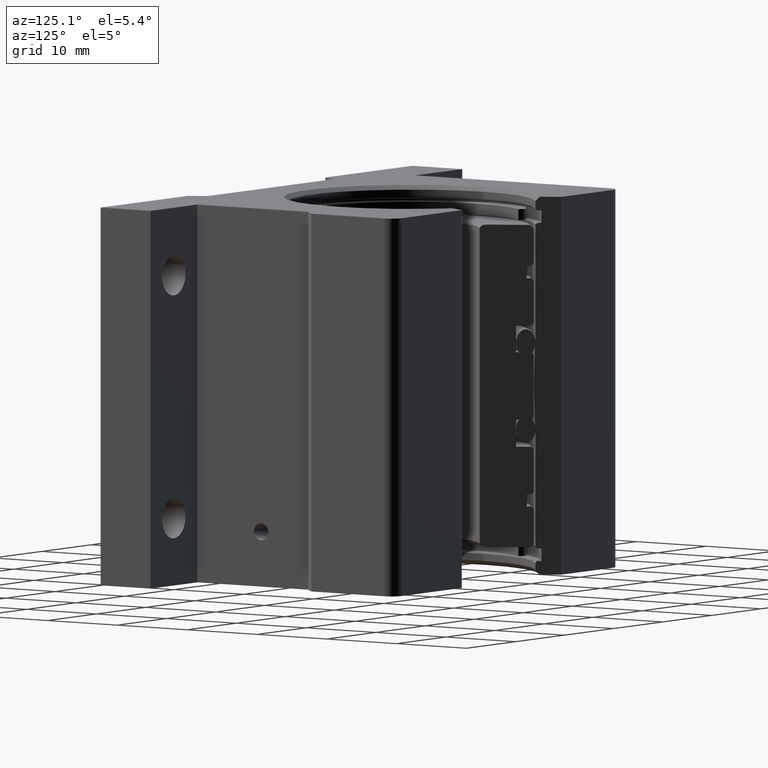
[diagram: clean part render]
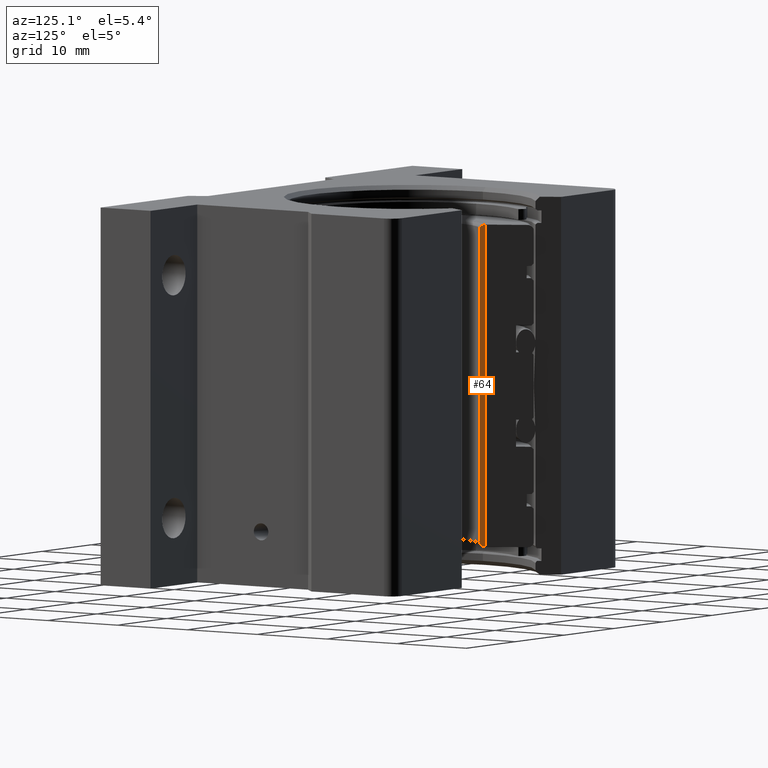
[diagram: same view with one face highlighted and labeled with its STEP entity id]
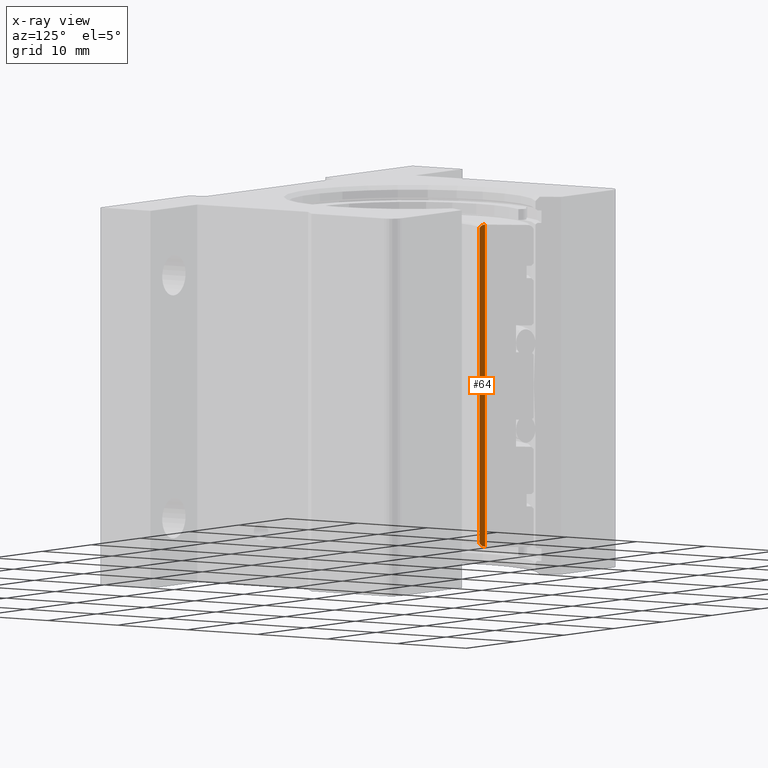
[diagram: x-ray of the same camera — body ghosted, the highlighted face saturated]
A machine part, auxiliary view. The second image highlights one B-rep face of the part: STEP entity #64.
The next image is the same camera in x-ray: the body ghosted, the highlighted face saturated — about 0% of this face is hidden behind the body in this view.
In plain terms, the highlighted planar face has unit normal (-0.866, -0.5, 0).
Its self-contained STEP definition (entity closure, byte-faithful):
#64 = ADVANCED_FACE ( 'NONE', ( #5578 ), #4351, .F. ) ;
#144 = CARTESIAN_POINT ( 'NONE',  ( -0.2003461468640649890, 0.2728436758232128945, 0.7462412383038781183 ) ) ;
#646 = CARTESIAN_POINT ( 'NONE',  ( -0.1906664938282702781, 0.2560780249655780216, 0.7392375786190304998 ) ) ;
#975 = CARTESIAN_POINT ( 'NONE',  ( -0.1990259073393738920, 0.2705569538882873215, -0.7461777922676955388 ) ) ;
#1679 = CARTESIAN_POINT ( 'NONE',  ( -0.2003461468640649890, 0.2728436758232128945, -0.7462412383038781183 ) ) ;
#1759 = CARTESIAN_POINT ( 'NONE',  ( -0.2003461468640650722, 0.2728436758232128945, -0.7462412383038781183 ) ) ;
#2410 = VECTOR ( 'NONE', #9786, 39.37007874015748143 ) ;
#2693 = EDGE_CURVE ( 'NONE', #8098, #7649, #9598, .T. ) ;
#2814 = CARTESIAN_POINT ( 'NONE',  ( -0.1874999999999999722, 0.2505934967731605623, -0.7462412383038781183 ) ) ;
#3153 = AXIS2_PLACEMENT_3D ( 'NONE', #7932, #5221, #10568 ) ;
#3440 = CARTESIAN_POINT ( 'NONE',  ( -0.1874999999999999167, 0.2505934967731605623, -0.7307736875482778727 ) ) ;
#3514 = ORIENTED_EDGE ( 'NONE', *, *, #2693, .T. ) ;
#4005 = EDGE_LOOP ( 'NONE', ( #3514, #8287, #7857, #4146 ) ) ;
#4020 = CARTESIAN_POINT ( 'NONE',  ( -0.1952389169351576026, 0.2639976941004088529, 0.7443287212032394518 ) ) ;
#4128 = CARTESIAN_POINT ( 'NONE',  ( -0.1977409822423569496, 0.2683313983363335709, 0.7457771688753566108 ) ) ;
#4146 = ORIENTED_EDGE ( 'NONE', *, *, #6683, .F. ) ;
#4267 = VERTEX_POINT ( 'NONE', #11198 ) ;
#4351 = PLANE ( 'NONE',  #3153 ) ;
#5094 = CARTESIAN_POINT ( 'NONE',  ( -0.1940155853690803123, 0.2618788216734602159, -0.7432618688159996490 ) ) ;
#5221 = DIRECTION ( 'NONE',  ( -0.8660254037844401509, -0.4999999999999974465, 1.110223024625151117E-16 ) ) ;
#5578 = FACE_OUTER_BOUND ( 'NONE', #4005, .T. ) ;
#5898 = CARTESIAN_POINT ( 'NONE',  ( -0.2003461468640649890, 0.2728436758232128945, 0.7462412383038781183 ) ) ;
#6086 = CARTESIAN_POINT ( 'NONE',  ( -0.1977409822423569496, 0.2683313983363335709, -0.7457771688753566108 ) ) ;
#6359 = CARTESIAN_POINT ( 'NONE',  ( -0.1874999999999999167, 0.2505934967731605623, -0.7307736875482778727 ) ) ;
#6683 = EDGE_CURVE ( 'NONE', #8098, #4267, #10005, .T. ) ;
#6703 = CARTESIAN_POINT ( 'NONE',  ( -0.1887857233924383760, 0.2528204350133437250, 0.7353885616594887376 ) ) ;
#6769 = CARTESIAN_POINT ( 'NONE',  ( -0.1940155853690803123, 0.2618788216734602159, 0.7432618688159996490 ) ) ;
#6836 = CARTESIAN_POINT ( 'NONE',  ( -0.1952389169351576026, 0.2639976941004088529, -0.7443287212032394518 ) ) ;
#7595 = VECTOR ( 'NONE', #7805, 39.37007874015748143 ) ;
#7649 = VERTEX_POINT ( 'NONE', #9373 ) ;
#7668 = EDGE_CURVE ( 'NONE', #4267, #7944, #7753, .T. ) ;
#7753 = B_SPLINE_CURVE_WITH_KNOTS ( 'NONE', 3,
 ( #11011, #6703, #646, #6769, #4020, #4128, #8434, #5898 ),
 .UNSPECIFIED., .F., .F.,
 ( 4, 2, 2, 4 ),
 ( 4.679700766222123361E-07, 0.0003973221935628372826, 0.0005957493053059442810, 0.0007941764170490512795 ),
 .UNSPECIFIED. ) ;
#7805 = DIRECTION ( 'NONE',  ( 0.0000000000000000000, 0.0000000000000000000, 1.000000000000000000 ) ) ;
#7857 = ORIENTED_EDGE ( 'NONE', *, *, #7668, .F. ) ;
#7932 = CARTESIAN_POINT ( 'NONE',  ( -0.1874999999999999722, 0.2505934967731605623, -0.7462412383038781183 ) ) ;
#7944 = VERTEX_POINT ( 'NONE', #144 ) ;
#8098 = VERTEX_POINT ( 'NONE', #6359 ) ;
#8287 = ORIENTED_EDGE ( 'NONE', *, *, #9416, .T. ) ;
#8434 = CARTESIAN_POINT ( 'NONE',  ( -0.1990259073393738920, 0.2705569538882873215, 0.7461777922676955388 ) ) ;
#9373 = CARTESIAN_POINT ( 'NONE',  ( -0.2003461468640649890, 0.2728436758232128945, -0.7462412383038781183 ) ) ;
#9416 = EDGE_CURVE ( 'NONE', #7649, #7944, #10321, .T. ) ;
#9561 = CARTESIAN_POINT ( 'NONE',  ( -0.1906664938282702781, 0.2560780249655780771, -0.7392375786190304998 ) ) ;
#9598 = B_SPLINE_CURVE_WITH_KNOTS ( 'NONE', 3,
 ( #3440, #10324, #9561, #5094, #6836, #6086, #975, #1679 ),
 .UNSPECIFIED., .F., .F.,
 ( 4, 2, 2, 4 ),
 ( 4.679700766222123361E-07, 0.0003973221935628372826, 0.0005957493053059442810, 0.0007941764170490512795 ),
 .UNSPECIFIED. ) ;
#9786 = DIRECTION ( 'NONE',  ( 0.0000000000000000000, 0.0000000000000000000, 1.000000000000000000 ) ) ;
#10005 = LINE ( 'NONE', #2814, #2410 ) ;
#10321 = LINE ( 'NONE', #1759, #7595 ) ;
#10324 = CARTESIAN_POINT ( 'NONE',  ( -0.1887857233924383760, 0.2528204350133437806, -0.7353885616594887376 ) ) ;
#10568 = DIRECTION ( 'NONE',  ( -0.4999999999999973910, 0.8660254037844400399, -1.922962686383567514E-16 ) ) ;
#11011 = CARTESIAN_POINT ( 'NONE',  ( -0.1874999999999999167, 0.2505934967731605623, 0.7307736875482778727 ) ) ;
#11198 = CARTESIAN_POINT ( 'NONE',  ( -0.1874999999999999167, 0.2505934967731605623, 0.7307736875482778727 ) ) ;